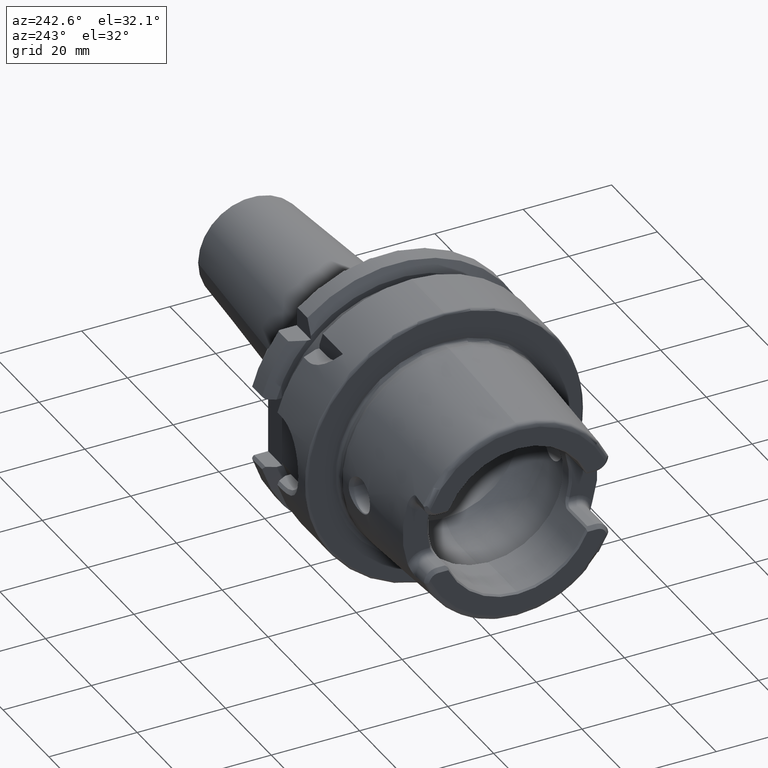
[diagram: clean part render]
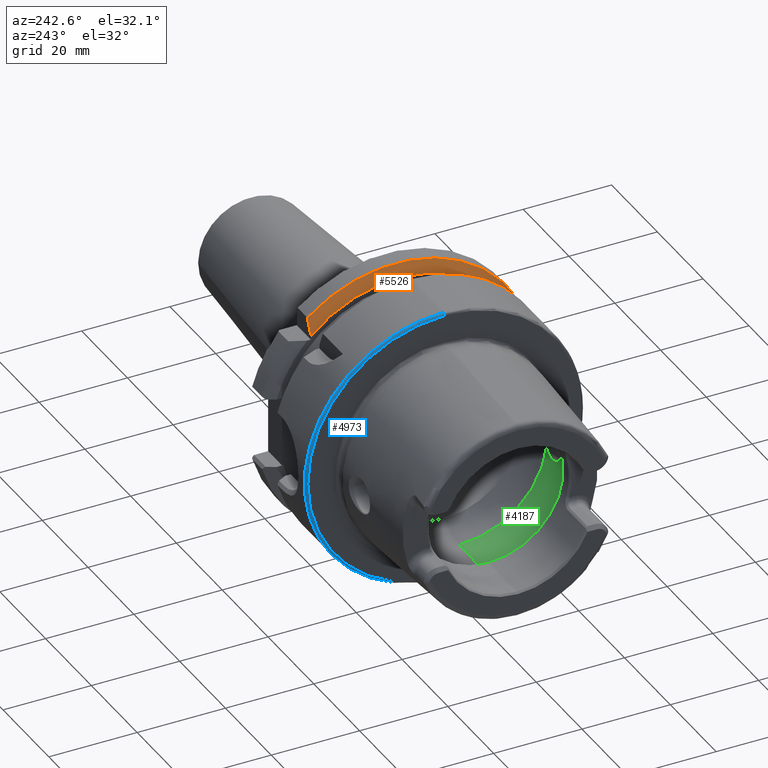
[diagram: same view with three faces highlighted in distinct colors, each labeled with its STEP entity id]
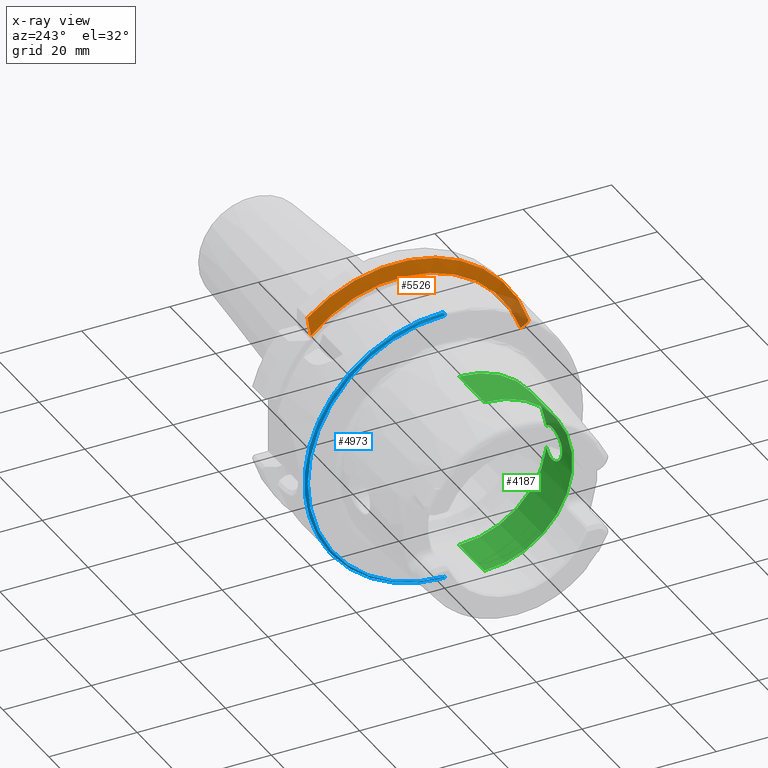
[diagram: x-ray of the same camera — body ghosted, the three highlighted faces saturated]
A machine part, auxiliary view with three faces highlighted in distinct colors.
The next image is the same camera in x-ray (body ghosted, the three faces saturated) — at least one of them is partly hidden behind the body in this view.
Their STEP definitions:

[orange] entity #5526 — the highlighted conical surface has half-angle 60 deg.
#2005=CARTESIAN_POINT('',(8.416338210270E-1,-1.183982137824E0,
3.690215079028E-1));
#2006=CARTESIAN_POINT('',(8.398514377041E-1,-1.181516858694E0,
3.665562287724E-1));
#2007=CARTESIAN_POINT('',(8.363024929716E-1,-1.176603114318E0,
3.616424843965E-1));
#2008=CARTESIAN_POINT('',(8.327852029129E-1,-1.171722993783E0,
3.567623638617E-1));
#2009=CARTESIAN_POINT('',(8.310344740385E-1,-1.169291338583E0,
3.543307086614E-1));
#2011=CARTESIAN_POINT('',(7.824803149606E-1,-1.081116279368E0,
3.543307086614E-1));
#2012=CARTESIAN_POINT('',(7.877227286396E-1,-1.090671649109E0,
3.543307086614E-1));
#2013=CARTESIAN_POINT('',(7.983094176575E-1,-1.109943475659E0,
3.543307086614E-1));
#2014=CARTESIAN_POINT('',(8.144929136786E-1,-1.139332183876E0,
3.543307086614E-1));
#2015=CARTESIAN_POINT('',(8.254867172302E-1,-1.159250845764E0,
3.543307086614E-1));
#2016=CARTESIAN_POINT('',(8.310344740385E-1,-1.169291338583E0,
3.543307086614E-1));
#2018=CARTESIAN_POINT('',(7.824803149606E-1,0.E0,0.E0));
#2019=DIRECTION('',(-1.E0,0.E0,0.E0));
#2020=DIRECTION('',(0.E0,-9.502643112990E-1,3.114445996827E-1));
#2021=AXIS2_PLACEMENT_3D('',#2018,#2019,#2020);
#2023=CARTESIAN_POINT('',(7.824803149606E-1,7.874015748031E-1,
8.211951172607E-1));
#2024=CARTESIAN_POINT('',(7.884767181517E-1,7.874015748031E-1,
8.355841991286E-1));
#2025=CARTESIAN_POINT('',(8.008501561357E-1,7.874015748031E-1,
8.649129530116E-1));
#2026=CARTESIAN_POINT('',(8.205460962649E-1,7.874015748031E-1,
9.105150512359E-1));
#2027=CARTESIAN_POINT('',(8.344729399100E-1,7.874015748031E-1,
9.420635318422E-1));
#2028=CARTESIAN_POINT('',(8.416338210270E-1,7.874015748031E-1,
9.581176002865E-1));
#2030=CARTESIAN_POINT('',(8.416338210270E-1,0.E0,0.E0));
#2031=DIRECTION('',(1.E0,0.E0,0.E0));
#2032=DIRECTION('',(0.E0,6.349206349206E-1,7.725773665802E-1));
#2033=AXIS2_PLACEMENT_3D('',#2030,#2031,#2032);
#2957=CARTESIAN_POINT('',(7.824803149606E-1,-1.081116279368E0,
3.543307086614E-1));
#2958=VERTEX_POINT('',#2957);
#2979=CARTESIAN_POINT('',(7.824803149606E-1,7.874015748031E-1,
8.211951172607E-1));
#2981=VERTEX_POINT('',#2979);
#2985=VERTEX_POINT('',#2028);
#3157=VERTEX_POINT('',#2005);
#3158=VERTEX_POINT('',#2009);
#5512=CARTESIAN_POINT('',(8.120570679938E-1,0.E0,0.E0));
#5513=DIRECTION('',(1.E0,0.E0,0.E0));
#5514=DIRECTION('',(0.E0,0.E0,1.E0));
#5515=AXIS2_PLACEMENT_3D('',#5512,#5513,#5514);
#5516=CONICAL_SURFACE('',#5515,1.188929041339E0,6.E1);
#5517=ORIENTED_EDGE('',*,*,#5262,.T.);
#5518=ORIENTED_EDGE('',*,*,#5296,.F.);
#5520=ORIENTED_EDGE('',*,*,#5519,.T.);
#5522=ORIENTED_EDGE('',*,*,#5521,.T.);
#5523=ORIENTED_EDGE('',*,*,#4857,.T.);
#5524=EDGE_LOOP('',(#5517,#5518,#5520,#5522,#5523));
#5525=FACE_OUTER_BOUND('',#5524,.F.);
#5526=ADVANCED_FACE('',(#5525),#5516,.T.);
#2010=B_SPLINE_CURVE_WITH_KNOTS('',3,(#2005,#2006,#2007,#2008,#2009),
.UNSPECIFIED.,.F.,.F.,(4,1,4),(0.E0,5.E-1,1.E0),.UNSPECIFIED.);
#2017=B_SPLINE_CURVE_WITH_KNOTS('',3,(#2011,#2012,#2013,#2014,#2015,#2016),
.UNSPECIFIED.,.F.,.F.,(4,1,1,4),(0.E0,3.333333333333E-1,6.666666666667E-1,1.E0),
.UNSPECIFIED.);
#2022=CIRCLE('',#2021,1.137700602362E0);
#2029=B_SPLINE_CURVE_WITH_KNOTS('',3,(#2023,#2024,#2025,#2026,#2027,#2028),
.UNSPECIFIED.,.F.,.F.,(4,1,1,4),(0.E0,3.333333333333E-1,6.666666666667E-1,1.E0),
.UNSPECIFIED.);
#2034=CIRCLE('',#2033,1.240157480315E0);
#4857=EDGE_CURVE('',#2985,#3157,#2034,.T.);
#5262=EDGE_CURVE('',#3157,#3158,#2010,.T.);
#5296=EDGE_CURVE('',#2958,#3158,#2017,.T.);
#5519=EDGE_CURVE('',#2958,#2981,#2022,.T.);
#5521=EDGE_CURVE('',#2981,#2985,#2029,.T.);

[blue] entity #4973 — the highlighted toroidal blend (fillet) surface has major radius 31 mm and minor (blend) radius 0.5 mm.
#1530=CARTESIAN_POINT('',(1.968503937008E-2,0.E0,0.E0));
#1531=DIRECTION('',(-1.E0,0.E0,0.E0));
#1532=DIRECTION('',(0.E0,0.E0,1.E0));
#1533=AXIS2_PLACEMENT_3D('',#1530,#1531,#1532);
#1620=CARTESIAN_POINT('',(1.968503937008E-2,0.E0,1.220472440945E0));
#1621=DIRECTION('',(0.E0,1.E0,0.E0));
#1622=DIRECTION('',(-1.E0,0.E0,1.127986593019E-14));
#1623=AXIS2_PLACEMENT_3D('',#1620,#1621,#1622);
#1635=CARTESIAN_POINT('',(0.E0,0.E0,0.E0));
#1636=DIRECTION('',(-1.E0,0.E0,0.E0));
#1637=DIRECTION('',(0.E0,0.E0,1.E0));
#1638=AXIS2_PLACEMENT_3D('',#1635,#1636,#1637);
#1709=CARTESIAN_POINT('',(1.968503937008E-2,0.E0,-1.220472440945E0));
#1710=DIRECTION('',(0.E0,-1.E0,0.E0));
#1711=DIRECTION('',(-1.E0,0.E0,-1.127986593019E-14));
#1712=AXIS2_PLACEMENT_3D('',#1709,#1710,#1711);
#3188=CARTESIAN_POINT('',(0.E0,0.E0,1.220472440945E0));
#3189=CARTESIAN_POINT('',(0.E0,0.E0,-1.220472440945E0));
#3190=VERTEX_POINT('',#3188);
#3191=VERTEX_POINT('',#3189);
#3192=CARTESIAN_POINT('',(1.968503937008E-2,0.E0,1.240157480315E0));
#3193=CARTESIAN_POINT('',(1.968503937008E-2,0.E0,-1.240157480315E0));
#3194=VERTEX_POINT('',#3192);
#3195=VERTEX_POINT('',#3193);
#4959=CARTESIAN_POINT('',(1.968503937008E-2,0.E0,0.E0));
#4960=DIRECTION('',(1.E0,0.E0,0.E0));
#4961=DIRECTION('',(0.E0,-7.372485208601E-3,9.999728228616E-1));
#4962=AXIS2_PLACEMENT_3D('',#4959,#4960,#4961);
#4963=TOROIDAL_SURFACE('',#4962,1.220472440945E0,1.968503937008E-2);
#4965=ORIENTED_EDGE('',*,*,#4964,.T.);
#4967=ORIENTED_EDGE('',*,*,#4966,.T.);
#4968=ORIENTED_EDGE('',*,*,#4932,.F.);
#4970=ORIENTED_EDGE('',*,*,#4969,.F.);
#4971=EDGE_LOOP('',(#4965,#4967,#4968,#4970));
#4972=FACE_OUTER_BOUND('',#4971,.F.);
#4973=ADVANCED_FACE('',(#4972),#4963,.T.);
#1534=CIRCLE('',#1533,1.240157480315E0);
#1624=CIRCLE('',#1623,1.968503937008E-2);
#1639=CIRCLE('',#1638,1.220472440945E0);
#1713=CIRCLE('',#1712,1.968503937008E-2);
#4932=EDGE_CURVE('',#3194,#3195,#1534,.T.);
#4964=EDGE_CURVE('',#3190,#3191,#1639,.T.);
#4966=EDGE_CURVE('',#3191,#3195,#1713,.T.);
#4969=EDGE_CURVE('',#3190,#3194,#1624,.T.);

[green] entity #4187 — the highlighted cylindrical surface (partial cylindrical patch) has radius 20 mm, axis along (1, 0, 0).
#639=CARTESIAN_POINT('',(-6.796840414941E-1,0.E0,0.E0));
#640=DIRECTION('',(-1.E0,0.E0,0.E0));
#641=DIRECTION('',(0.E0,0.E0,-1.E0));
#642=AXIS2_PLACEMENT_3D('',#639,#640,#641);
#791=CARTESIAN_POINT('',(-5.019685039370E-1,-7.874015708661E-1,0.E0));
#792=CARTESIAN_POINT('',(-5.019685039370E-1,-7.874015708661E-1,
-9.925936088082E-3));
#793=CARTESIAN_POINT('',(-5.000106445959E-1,-7.870309940842E-1,
-2.935991372589E-2));
#794=CARTESIAN_POINT('',(-4.912806579868E-1,-7.854412114399E-1,
-5.775882548703E-2));
#795=CARTESIAN_POINT('',(-4.770911424619E-1,-7.830618997100E-1,
-8.375745262049E-2));
#796=CARTESIAN_POINT('',(-4.581578257033E-1,-7.802803366856E-1,
-1.063409174016E-1));
#797=CARTESIAN_POINT('',(-4.349324489261E-1,-7.774947338312E-1,
-1.248628726955E-1));
#798=CARTESIAN_POINT('',(-4.086766968532E-1,-7.751788154182E-1,
-1.383392127415E-1));
#799=CARTESIAN_POINT('',(-3.798455903992E-1,-7.736722009178E-1,
-1.464235007100E-1));
#800=CARTESIAN_POINT('',(-3.504298702615E-1,-7.732577317856E-1,
-1.485671470986E-1));
#801=CARTESIAN_POINT('',(-3.209691006274E-1,-7.739762676486E-1,
-1.448242366235E-1));
#802=CARTESIAN_POINT('',(-2.928023692533E-1,-7.757168360758E-1,
-1.353494148439E-1));
#803=CARTESIAN_POINT('',(-2.664042103441E-1,-7.782975441516E-1,
-1.198210517652E-1));
#804=CARTESIAN_POINT('',(-2.524484910152E-1,-7.800925012547E-1,
-1.072620463708E-1));
#805=CARTESIAN_POINT('',(-2.460629921260E-1,-7.809777292935E-1,
-1.003743998739E-1));
#807=CARTESIAN_POINT('',(-2.460629921260E-1,-7.809777292935E-1,
1.003743998739E-1));
#808=CARTESIAN_POINT('',(-2.524687572930E-1,-7.800896917205E-1,
1.072839063632E-1));
#809=CARTESIAN_POINT('',(-2.664634454070E-1,-7.782896828569E-1,
1.198744937294E-1));
#810=CARTESIAN_POINT('',(-2.929888001290E-1,-7.757011636302E-1,
1.354388361477E-1));
#811=CARTESIAN_POINT('',(-3.211394912884E-1,-7.739699419945E-1,
1.448569698805E-1));
#812=CARTESIAN_POINT('',(-3.505264718735E-1,-7.732575066258E-1,
1.485684582686E-1));
#813=CARTESIAN_POINT('',(-3.799564198778E-1,-7.736761016122E-1,
1.464029508905E-1));
#814=CARTESIAN_POINT('',(-4.087243233155E-1,-7.751827730378E-1,
1.383172113561E-1));
#815=CARTESIAN_POINT('',(-4.349616426028E-1,-7.774979999486E-1,
1.248416878723E-1));
#816=CARTESIAN_POINT('',(-4.581479476636E-1,-7.802792343336E-1,
1.063478401787E-1));
#817=CARTESIAN_POINT('',(-4.770853388601E-1,-7.830609125396E-1,
8.376667860322E-2));
#818=CARTESIAN_POINT('',(-4.912742792944E-1,-7.854401140803E-1,
5.777286605703E-2));
#819=CARTESIAN_POINT('',(-5.000081223002E-1,-7.870305085561E-1,
2.937477565976E-2));
#820=CARTESIAN_POINT('',(-5.019685039370E-1,-7.874015708661E-1,
9.932069995996E-3));
#821=CARTESIAN_POINT('',(-5.019685039370E-1,-7.874015708661E-1,0.E0));
#823=CARTESIAN_POINT('',(-2.460629921260E-1,0.E0,0.E0));
#824=DIRECTION('',(1.E0,0.E0,0.E0));
#825=DIRECTION('',(0.E0,0.E0,1.E0));
#826=AXIS2_PLACEMENT_3D('',#823,#824,#825);
#828=DIRECTION('',(-1.E0,0.E0,0.E0));
#829=VECTOR('',#828,4.336210493681E-1);
#830=CARTESIAN_POINT('',(-2.460629921260E-1,0.E0,7.874015708661E-1));
#831=LINE('',#830,#829);
#832=DIRECTION('',(-1.E0,0.E0,0.E0));
#833=VECTOR('',#832,4.336210493681E-1);
#834=CARTESIAN_POINT('',(-2.460629921260E-1,0.E0,-7.874015708661E-1));
#835=LINE('',#834,#833);
#836=CARTESIAN_POINT('',(-2.460629921260E-1,0.E0,0.E0));
#837=DIRECTION('',(1.E0,0.E0,0.E0));
#838=DIRECTION('',(0.E0,-9.918417211620E-1,-1.274754884772E-1));
#839=AXIS2_PLACEMENT_3D('',#836,#837,#838);
#2867=CARTESIAN_POINT('',(-6.796840414941E-1,0.E0,-7.874015708661E-1));
#2868=CARTESIAN_POINT('',(-6.796840414941E-1,0.E0,7.874015708661E-1));
#2869=VERTEX_POINT('',#2867);
#2870=VERTEX_POINT('',#2868);
#2875=CARTESIAN_POINT('',(-2.460629921260E-1,0.E0,-7.874015708661E-1));
#2876=VERTEX_POINT('',#2875);
#2877=CARTESIAN_POINT('',(-2.460629921260E-1,0.E0,7.874015708661E-1));
#2878=VERTEX_POINT('',#2877);
#3125=VERTEX_POINT('',#791);
#3126=VERTEX_POINT('',#805);
#3127=VERTEX_POINT('',#807);
#4173=CARTESIAN_POINT('',(0.E0,0.E0,0.E0));
#4174=DIRECTION('',(1.E0,0.E0,0.E0));
#4175=DIRECTION('',(0.E0,0.E0,1.E0));
#4176=AXIS2_PLACEMENT_3D('',#4173,#4174,#4175);
#4177=CYLINDRICAL_SURFACE('',#4176,7.874015708661E-1);
#4178=ORIENTED_EDGE('',*,*,#4071,.F.);
#4179=ORIENTED_EDGE('',*,*,#4131,.F.);
#4180=ORIENTED_EDGE('',*,*,#4167,.F.);
#4181=ORIENTED_EDGE('',*,*,#4036,.T.);
#4182=ORIENTED_EDGE('',*,*,#4004,.F.);
#4183=ORIENTED_EDGE('',*,*,#4033,.F.);
#4184=ORIENTED_EDGE('',*,*,#4161,.F.);
#4185=EDGE_LOOP('',(#4178,#4179,#4180,#4181,#4182,#4183,#4184));
#4186=FACE_OUTER_BOUND('',#4185,.F.);
#4187=ADVANCED_FACE('',(#4186),#4177,.F.);
#643=CIRCLE('',#642,7.874015708661E-1);
#806=B_SPLINE_CURVE_WITH_KNOTS('',3,(#791,#792,#793,#794,#795,#796,#797,#798,
#799,#800,#801,#802,#803,#804,#805),.UNSPECIFIED.,.F.,.F.,(4,1,1,1,1,1,1,1,1,1,
1,1,4),(0.E0,8.333333333333E-2,1.666666666667E-1,2.5E-1,3.333333333333E-1,
4.166666666667E-1,5.E-1,5.833333333333E-1,6.666666666667E-1,7.5E-1,
8.333333333333E-1,9.166666666667E-1,1.E0),.UNSPECIFIED.);
#822=B_SPLINE_CURVE_WITH_KNOTS('',3,(#807,#808,#809,#810,#811,#812,#813,#814,
#815,#816,#817,#818,#819,#820,#821),.UNSPECIFIED.,.F.,.F.,(4,1,1,1,1,1,1,1,1,1,
1,1,4),(0.E0,8.333333333333E-2,1.666666666667E-1,2.5E-1,3.333333333333E-1,
4.166666666667E-1,5.E-1,5.833333333333E-1,6.666666666667E-1,7.5E-1,
8.333333333333E-1,9.166666666667E-1,1.E0),.UNSPECIFIED.);
#827=CIRCLE('',#826,7.874015708661E-1);
#840=CIRCLE('',#839,7.874015708661E-1);
#4004=EDGE_CURVE('',#2869,#2870,#643,.T.);
#4033=EDGE_CURVE('',#2876,#2869,#835,.T.);
#4036=EDGE_CURVE('',#2878,#2870,#831,.T.);
#4071=EDGE_CURVE('',#3125,#3126,#806,.T.);
#4131=EDGE_CURVE('',#3127,#3125,#822,.T.);
#4161=EDGE_CURVE('',#3126,#2876,#840,.T.);
#4167=EDGE_CURVE('',#2878,#3127,#827,.T.);